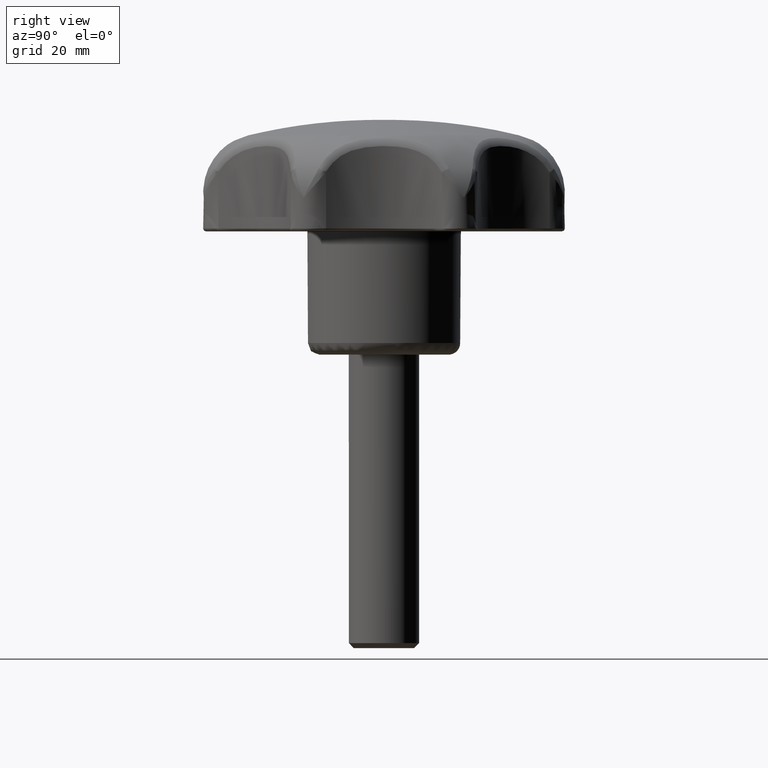
[diagram: clean part render]
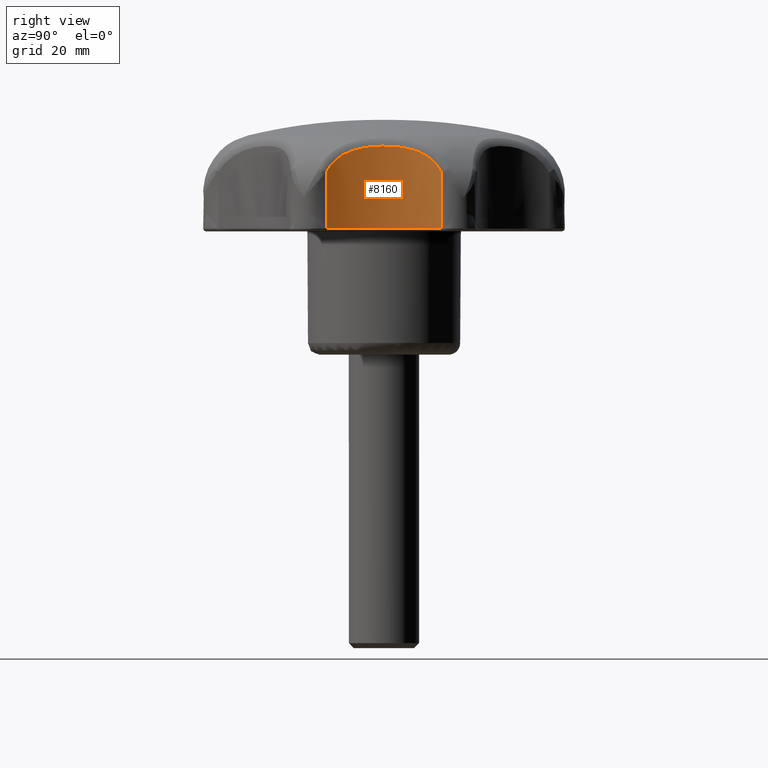
[diagram: same view with one face highlighted and labeled with its STEP entity id]
A machine part, right view. The second image highlights one B-rep face of the part: STEP entity #8160.
In plain terms, the highlighted face is a freeform B-spline surface patch.
Its self-contained STEP definition (entity closure, byte-faithful):
#3893=CARTESIAN_POINT('',(28.196289599395701,-9.856706863785160,21.500000000000000));
#3894=VERTEX_POINT('',#3893);
#4035=CARTESIAN_POINT('',(28.196289402870502,9.856706647020470,21.500000000000000));
#4036=VERTEX_POINT('',#4035);
#4050=CARTESIAN_POINT('',(28.196289599395701,-9.856706863785160,21.500000000000000));
#4051=CARTESIAN_POINT('',(22.215080639223761,-0.000000168009681,21.500000000000000));
#4052=CARTESIAN_POINT('',(28.196289402870502,9.856706647020463,21.500000000000000));
#4060=(BOUNDED_CURVE()B_SPLINE_CURVE(2,(#4050,#4051,#4052),.UNSPECIFIED.,.F.,.U.)CURVE()GEOMETRIC_REPRESENTATION_ITEM()QUASI_UNIFORM_CURVE()RATIONAL_B_SPLINE_CURVE((1.0,0.854911395927170,1.0))REPRESENTATION_ITEM(''));
#4061=EDGE_CURVE('',#3894,#4036,#4060,.T.);
#5265=CARTESIAN_POINT('',(28.196289402870502,9.856706647020470,31.049571731975849));
#5266=VERTEX_POINT('',#5265);
#5531=CARTESIAN_POINT('',(28.196289599395701,-9.856706863785160,31.049571333828251));
#5532=VERTEX_POINT('',#5531);
#5546=CARTESIAN_POINT('',(28.196289402870502,9.856706647020470,31.049571731975849));
#5547=CARTESIAN_POINT('',(28.062811725324920,9.636742694334293,31.477337266941610));
#5548=CARTESIAN_POINT('',(27.915430418152621,9.383944872679322,31.875114197680649));
#5549=CARTESIAN_POINT('',(27.680724935609771,8.953580595377712,32.428310503226122));
#5550=CARTESIAN_POINT('',(27.600211437058810,8.801559572777965,32.605433548170261));
#5551=CARTESIAN_POINT('',(27.476931873376490,8.560131512650406,32.860168044141133));
#5552=CARTESIAN_POINT('',(27.435417710679090,8.477414468098694,32.943259276261273));
#5553=CARTESIAN_POINT('',(27.351724260715070,8.307422771643442,33.105744914702640));
#5554=CARTESIAN_POINT('',(27.309870789941339,8.220808805204781,33.184508648207490));
#5555=CARTESIAN_POINT('',(27.100991141664078,7.779771670787556,33.566387413992508));
#5556=CARTESIAN_POINT('',(26.935166618407791,7.401499631540711,33.833788267599090));
#5557=CARTESIAN_POINT('',(26.695849501513688,6.797499837242240,34.184891766767201));
#5558=CARTESIAN_POINT('',(26.617639420228191,6.590057428064558,34.293572362118013));
#5559=CARTESIAN_POINT('',(26.503563130558529,6.269864719791340,34.444835496921321));
#5560=CARTESIAN_POINT('',(26.466009142866760,6.161423989312171,34.493381969910729));
#5561=CARTESIAN_POINT('',(26.392459251276041,5.942543545388907,34.586263887483213));
#5562=CARTESIAN_POINT('',(26.356540246015879,5.832346384522807,34.630508171337283));
#5563=CARTESIAN_POINT('',(26.181397612176742,5.277720062521055,34.841480792693012));
#5564=CARTESIAN_POINT('',(26.055563945290949,4.822411145370376,34.977659418756552));
#5565=CARTESIAN_POINT('',(25.836258794996780,3.891545232218511,35.200170164592230));
#5566=CARTESIAN_POINT('',(25.742769508601839,3.415987583606694,35.286482929494433));
#5567=CARTESIAN_POINT('',(25.648162867937490,2.810107940418050,35.369979753249417));
#5568=CARTESIAN_POINT('',(25.630336396645120,2.688228840426102,35.385463601789183));
#5569=CARTESIAN_POINT('',(25.597037479394711,2.443933071195384,35.414028333408602));
#5570=CARTESIAN_POINT('',(25.581597357248491,2.321774731291900,35.427082289347453));
#5571=CARTESIAN_POINT('',(25.538880278533220,1.955269468311012,35.462813645727607));
#5572=CARTESIAN_POINT('',(25.515205240929578,1.710892361691746,35.482074024820150));
#5573=CARTESIAN_POINT('',(25.458441825301211,0.977646984311117,35.527703248492912));
#5574=CARTESIAN_POINT('',(25.439594157872872,0.488665541044837,35.542119242576682));
#5575=CARTESIAN_POINT('',(25.439617853274711,-0.489585984557392,35.542100808759180));
#5576=CARTESIAN_POINT('',(25.458488709553979,-0.978856058227859,35.527667978200917));
#5577=CARTESIAN_POINT('',(25.515391020631281,-1.712988794106914,35.481923470497371));
#5578=CARTESIAN_POINT('',(25.539129800152331,-1.957737866401104,35.462609381858847));
#5579=CARTESIAN_POINT('',(25.581983636811842,-2.324922222574988,35.426756913655780));
#5580=CARTESIAN_POINT('',(25.597502776657208,-2.447512661431609,35.413632785460827));
#5581=CARTESIAN_POINT('',(25.630819129615539,-2.691599630596210,35.385045799371191));
#5582=CARTESIAN_POINT('',(25.648611534581210,-2.813096295781911,35.369587507869191));
#5583=CARTESIAN_POINT('',(25.743124720116661,-3.417795788347068,35.286154281964947));
#5584=CARTESIAN_POINT('',(25.836507738768990,-3.892687296235938,35.199927061918643));
#5585=CARTESIAN_POINT('',(26.055672464610868,-4.822786235122593,34.977539817805628));
#5586=CARTESIAN_POINT('',(26.181471934045621,-5.277995015990793,34.841402188653788));
#5587=CARTESIAN_POINT('',(26.356704962998641,-5.832858070531502,34.630307019485222));
#5588=CARTESIAN_POINT('',(26.392648717828841,-5.943120653347689,34.586029107560442));
#5589=CARTESIAN_POINT('',(26.466263692818430,-6.162168169859967,34.493055999847670));
#5590=CARTESIAN_POINT('',(26.503782356685090,-6.270491808574700,34.444549654311942));
#5591=CARTESIAN_POINT('',(26.617869238279180,-6.590678867757003,34.293257890063103));
#5592=CARTESIAN_POINT('',(26.696130763051130,-6.798241969919045,34.184498607478858));
#5593=CARTESIAN_POINT('',(26.935758168858531,-7.402927837510666,33.832881297292289));
#5594=CARTESIAN_POINT('',(27.102002064002360,-7.782091392480175,33.564776451091547));
#5595=CARTESIAN_POINT('',(27.311686043784309,-8.224594155100959,33.181129181152727));
#5596=CARTESIAN_POINT('',(27.353773026335670,-8.311630426603974,33.101839530577742));
#5597=CARTESIAN_POINT('',(27.437098897245662,-8.480780681823610,32.939919886207939));
#5598=CARTESIAN_POINT('',(27.478437490300550,-8.563110432228918,32.857114620296407));
#5599=CARTESIAN_POINT('',(27.601243532266519,-8.803518578448996,32.603182707142800));
#5600=CARTESIAN_POINT('',(27.681500060366009,-8.955023314979480,32.426545129337157));
#5601=CARTESIAN_POINT('',(27.915604386753142,-9.384220783245878,31.874580313790400));
#5602=CARTESIAN_POINT('',(28.062814775298211,-9.636747726694537,31.477327538301040));
#5603=CARTESIAN_POINT('',(28.196289599395701,-9.856706863785160,31.049571333828251));
#5604=B_SPLINE_CURVE_WITH_KNOTS('',3,(#5546,#5547,#5548,#5549,#5550,#5551,#5552,#5553,#5554,#5555,#5556,#5557,#5558,#5559,#5560,#5561,#5562,#5563,#5564,#5565,#5566,#5567,#5568,#5569,#5570,#5571,#5572,#5573,#5574,#5575,#5576,#5577,#5578,#5579,#5580,#5581,#5582,#5583,#5584,#5585,#5586,#5587,#5588,#5589,#5590,#5591,#5592,#5593,#5594,#5595,#5596,#5597,#5598,#5599,#5600,#5601,#5602,#5603),.UNSPECIFIED.,.F.,.U.,(4,2,2,2,2,2,2,2,2,2,2,2,2,2,2,2,2,2,2,2,2,2,2,2,2,2,2,2,4),(0.0,0.062500000000001,0.093750000000001,0.109375000000001,0.125000000000001,0.187500000000001,0.218750000000001,0.234375000000001,0.250000000000001,0.312500000000000,0.375000000000000,0.390625000000000,0.406250000000000,0.437500000000000,0.500000000000000,0.562500000000000,0.593750000000000,0.609375000000000,0.625000000000000,0.687500000000001,0.750000000000001,0.765625000000001,0.781250000000001,0.812500000000001,0.875000000000001,0.890625000000001,0.906250000000000,0.937500000000000,1.0),.UNSPECIFIED.);
#5605=EDGE_CURVE('',#5266,#5532,#5604,.T.);
#8132=CARTESIAN_POINT('',(28.550159426705068,10.417556699841169,35.893162780835830));
#8133=CARTESIAN_POINT('',(28.550159426705068,10.417556699841169,21.140170930479101));
#8134=CARTESIAN_POINT('',(21.593818656515811,-0.192647611812897,35.893162780835830));
#8135=CARTESIAN_POINT('',(21.593818656515811,-0.192647611812897,21.140170930479101));
#8136=CARTESIAN_POINT('',(28.728099048276118,-10.684032445941536,35.893162780835837));
#8137=CARTESIAN_POINT('',(28.728099048276118,-10.684032445941536,21.140170930479108));
#8145=(BOUNDED_SURFACE()B_SPLINE_SURFACE(1,2,((#8132,#8134,#8136),(#8133,#8135,#8137)),.UNSPECIFIED.,.F.,.F.,.U.)B_SPLINE_SURFACE_WITH_KNOTS((2,2),(3,3),(0.0,14.752991850356739),(0.0,23.041993145081129),.UNSPECIFIED.)GEOMETRIC_REPRESENTATION_ITEM()RATIONAL_B_SPLINE_SURFACE(((1.0,0.828265452142055,0.991916311547361),(1.0,0.828265452142055,0.991916311547361)))REPRESENTATION_ITEM('')SURFACE());
#8146=CARTESIAN_POINT('',(28.196289599395701,-9.856706863785160,31.049571333828251));
#8147=CARTESIAN_POINT('',(28.196289599395701,-9.856706863785160,21.500000000000000));
#8148=QUASI_UNIFORM_CURVE('',1,(#8146,#8147),.UNSPECIFIED.,.F.,.U.);
#8149=EDGE_CURVE('',#5532,#3894,#8148,.T.);
#8150=ORIENTED_EDGE('',*,*,#8149,.T.);
#8151=ORIENTED_EDGE('',*,*,#4061,.T.);
#8152=CARTESIAN_POINT('',(28.196289402870502,9.856706647020470,31.049571731975849));
#8153=CARTESIAN_POINT('',(28.196289402870502,9.856706647020470,21.500000000000000));
#8154=QUASI_UNIFORM_CURVE('',1,(#8152,#8153),.UNSPECIFIED.,.F.,.U.);
#8155=EDGE_CURVE('',#5266,#4036,#8154,.T.);
#8156=ORIENTED_EDGE('',*,*,#8155,.F.);
#8157=ORIENTED_EDGE('',*,*,#5605,.T.);
#8158=EDGE_LOOP('',(#8150,#8151,#8156,#8157));
#8159=FACE_OUTER_BOUND('',#8158,.T.);
#8160=ADVANCED_FACE('',(#8159),#8145,.F.);